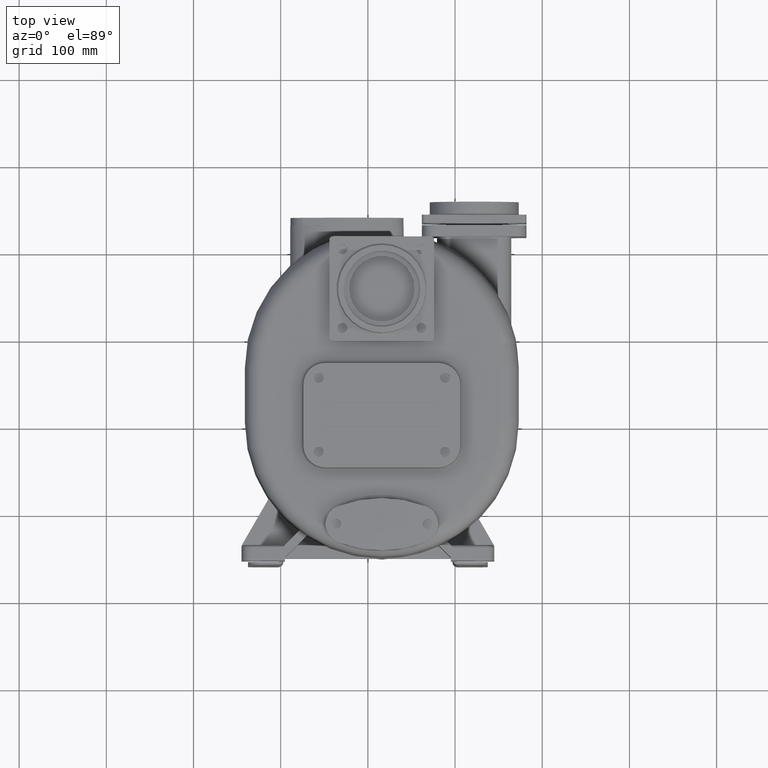
[diagram: clean part render]
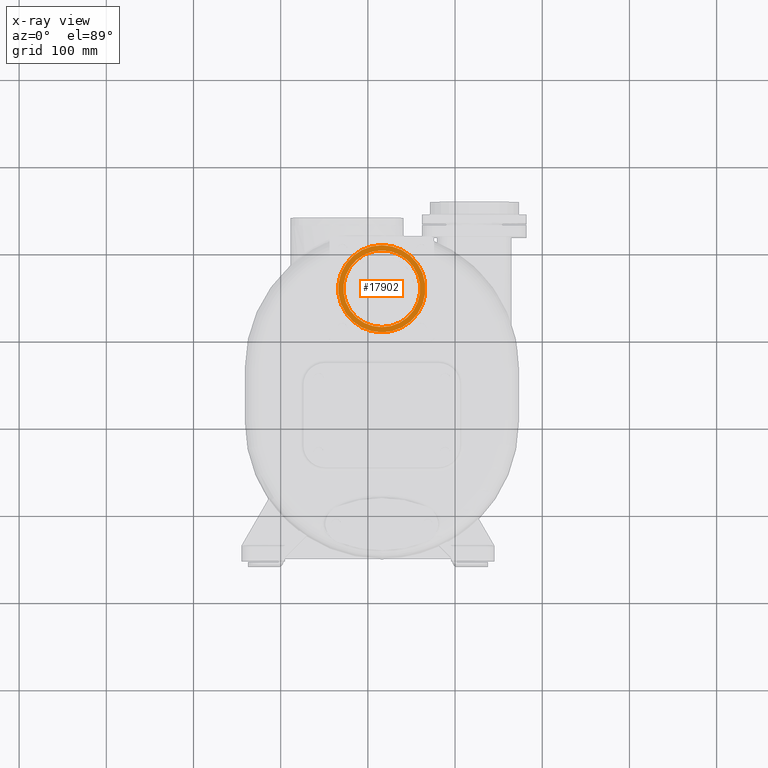
[diagram: x-ray — body ghosted, one internal face saturated and labeled with its STEP entity id]
A machine part, top view, then the same camera in x-ray: the body is ghosted and one INTERNAL B-rep face — a face not visible from any outside direction — is saturated and labeled: STEP entity #17902.
In plain terms, the highlighted planar face has unit normal (0, 0, 1).
Its self-contained STEP definition (entity closure, byte-faithful):
#4247=CARTESIAN_POINT('',(1.6E1,1.5E2,3.225E2));
#4248=DIRECTION('',(0.E0,0.E0,1.E0));
#4249=DIRECTION('',(0.E0,1.E0,0.E0));
#4250=AXIS2_PLACEMENT_3D('',#4247,#4248,#4249);
#4252=CARTESIAN_POINT('',(1.6E1,1.5E2,3.225E2));
#4253=DIRECTION('',(0.E0,0.E0,-1.E0));
#4254=DIRECTION('',(0.E0,1.E0,0.E0));
#4255=AXIS2_PLACEMENT_3D('',#4252,#4253,#4254);
#4261=CARTESIAN_POINT('',(1.6E1,1.5E2,3.225E2));
#4262=DIRECTION('',(0.E0,0.E0,-1.E0));
#4263=DIRECTION('',(0.E0,1.E0,0.E0));
#4264=AXIS2_PLACEMENT_3D('',#4261,#4262,#4263);
#4342=CARTESIAN_POINT('',(1.6E1,1.5E2,3.225E2));
#4343=DIRECTION('',(0.E0,0.E0,1.E0));
#4344=DIRECTION('',(0.E0,1.E0,0.E0));
#4345=AXIS2_PLACEMENT_3D('',#4342,#4343,#4344);
#13299=CARTESIAN_POINT('',(1.6E1,2.E2,3.225E2));
#13301=VERTEX_POINT('',#13299);
#13303=CARTESIAN_POINT('',(1.6E1,1.E2,3.225E2));
#13305=VERTEX_POINT('',#13303);
#13306=CARTESIAN_POINT('',(1.6E1,1.94E2,3.225E2));
#13307=CARTESIAN_POINT('',(1.6E1,1.06E2,3.225E2));
#13308=VERTEX_POINT('',#13306);
#13309=VERTEX_POINT('',#13307);
#17887=CARTESIAN_POINT('',(1.6E1,1.5E2,3.225E2));
#17888=DIRECTION('',(0.E0,0.E0,1.E0));
#17889=DIRECTION('',(0.E0,1.E0,0.E0));
#17890=AXIS2_PLACEMENT_3D('',#17887,#17888,#17889);
#17891=PLANE('',#17890);
#17892=ORIENTED_EDGE('',*,*,#17882,.T.);
#17893=ORIENTED_EDGE('',*,*,#17866,.F.);
#17894=EDGE_LOOP('',(#17892,#17893));
#17895=FACE_OUTER_BOUND('',#17894,.F.);
#17897=ORIENTED_EDGE('',*,*,#17896,.T.);
#17899=ORIENTED_EDGE('',*,*,#17898,.F.);
#17900=EDGE_LOOP('',(#17897,#17899));
#17901=FACE_BOUND('',#17900,.F.);
#17902=ADVANCED_FACE('',(#17895,#17901),#17891,.F.);
#4251=CIRCLE('',#4250,5.E1);
#4256=CIRCLE('',#4255,5.E1);
#4265=CIRCLE('',#4264,4.4E1);
#4346=CIRCLE('',#4345,4.4E1);
#17866=EDGE_CURVE('',#13301,#13305,#4256,.T.);
#17882=EDGE_CURVE('',#13301,#13305,#4251,.T.);
#17896=EDGE_CURVE('',#13308,#13309,#4265,.T.);
#17898=EDGE_CURVE('',#13308,#13309,#4346,.T.);